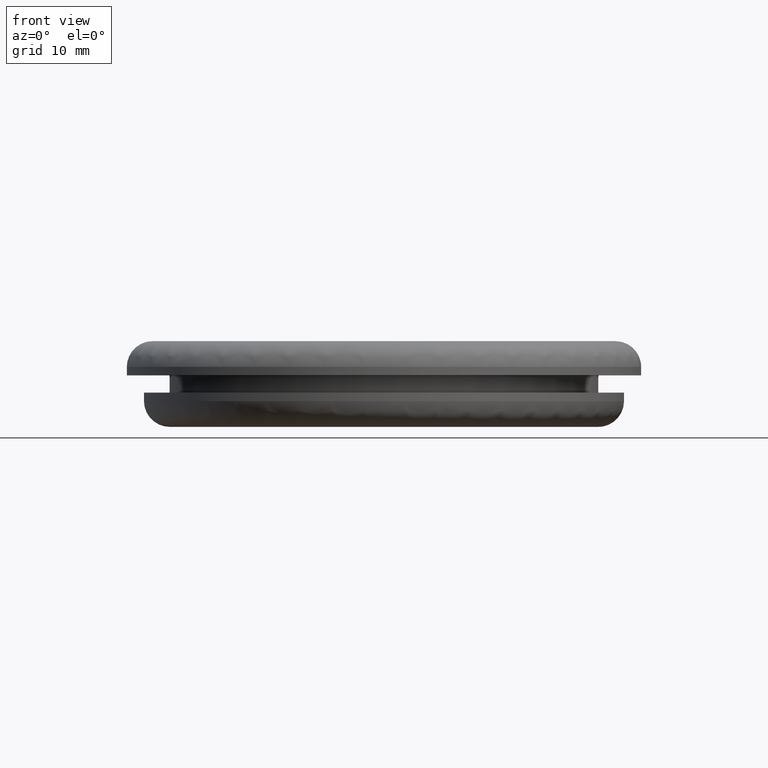
[diagram: clean part render]
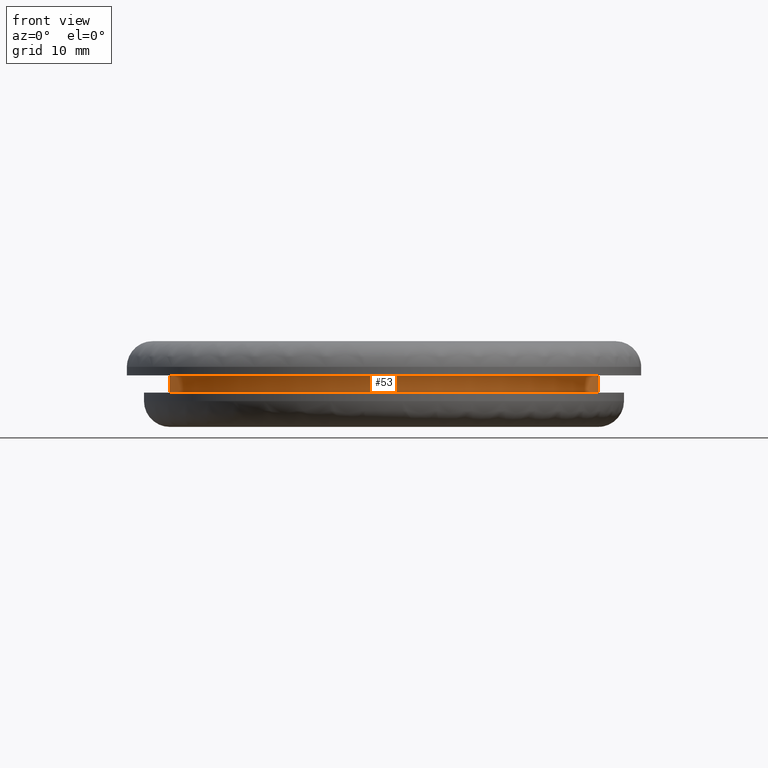
[diagram: same view with one face highlighted and labeled with its STEP entity id]
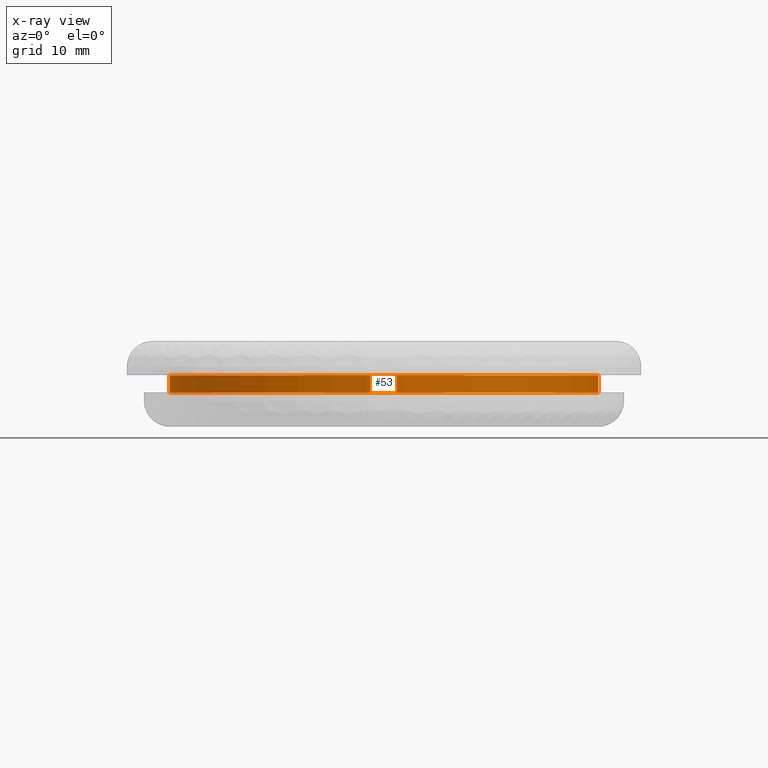
[diagram: x-ray of the same camera — body ghosted, the highlighted face saturated]
A machine part, front view. The second image highlights one B-rep face of the part: STEP entity #53.
The next image is the same camera in x-ray: the body ghosted, the highlighted face saturated — about 0% of this face is hidden behind the body in this view.
In plain terms, the highlighted cylindrical surface (partial cylindrical patch) has radius 25 mm, axis along (0, -0, 1).
Its self-contained STEP definition (entity closure, byte-faithful):
#53=ADVANCED_FACE('',(#195),#194,.T.);
#194=CYLINDRICAL_SURFACE('',#378,2.50000000000E+01);
#195=FACE_OUTER_BOUND('',#379,.T.);
#375=CARTESIAN_POINT('',(-1.19371179608E-12,0.00000000000E+00,0.00000000000E+00));
#376=DIRECTION('',(0.00000000000E+00,-0.00000000000E+00,1.00000000000E+00));
#377=DIRECTION('',(1.00000000000E+00,-0.00000000000E+00,-0.00000000000E+00));
#378=AXIS2_PLACEMENT_3D('',#375,#376,#377);
#379=EDGE_LOOP('',(#500,#501,#502,#503));
#500=ORIENTED_EDGE('',*,*,#543,.F.);
#501=ORIENTED_EDGE('',*,*,#556,.T.);
#502=ORIENTED_EDGE('',*,*,#538,.T.);
#503=ORIENTED_EDGE('',*,*,#557,.F.);
#538=EDGE_CURVE('',#636,#637,#638,.T.);
#543=EDGE_CURVE('',#665,#664,#672,.T.);
#556=EDGE_CURVE('',#665,#636,#756,.T.);
#557=EDGE_CURVE('',#664,#637,#762,.T.);
#636=VERTEX_POINT('',#868);
#637=VERTEX_POINT('',#869);
#638=CIRCLE('',#873,2.50000000000E+01);
#664=VERTEX_POINT('',#888);
#665=VERTEX_POINT('',#889);
#672=CIRCLE('',#897,2.50000000000E+01);
#756=(BOUNDED_CURVE() B_SPLINE_CURVE(1,(#944,#945),.UNSPECIFIED.,.F.,.F.) B_SPLINE_CURVE_WITH_KNOTS((2,2),(8.33333134656E-02,9.16666653270E-01),.UNSPECIFIED.) CURVE() GEOMETRIC_REPRESENTATION_ITEM() RATIONAL_B_SPLINE_CURVE((1.00000000000E+00,1.00000000000E+00)) REPRESENTATION_ITEM('') );
#762=(BOUNDED_CURVE() B_SPLINE_CURVE(1,(#946,#947),.UNSPECIFIED.,.F.,.F.) B_SPLINE_CURVE_WITH_KNOTS((2,2),(8.33333333333E-02,9.16666666667E-01),.UNSPECIFIED.) CURVE() GEOMETRIC_REPRESENTATION_ITEM() RATIONAL_B_SPLINE_CURVE((7.50000000000E-01,7.50000000000E-01)) REPRESENTATION_ITEM('') );
#868=CARTESIAN_POINT('',(2.50000000000E+01,-1.18423789293E-15,-4.00000000001E+00));
#869=CARTESIAN_POINT('',(-2.50000000000E+01,0.00000000000E+00,-4.00000000001E+00));
#870=CARTESIAN_POINT('',(-1.19371179608E-12,0.00000000000E+00,-4.00000000001E+00));
#871=DIRECTION('',(-0.00000000000E+00,0.00000000000E+00,-1.00000000000E+00));
#872=DIRECTION('',(-1.00000000000E+00,-1.22460635382E-16,0.00000000000E+00));
#873=AXIS2_PLACEMENT_3D('',#870,#871,#872);
#888=CARTESIAN_POINT('',(-2.50000000000E+01,0.00000000000E+00,-6.00000000001E+00));
#889=CARTESIAN_POINT('',(2.50000000000E+01,-1.18423789293E-15,-6.00000000001E+00));
#894=CARTESIAN_POINT('',(-1.19371179608E-12,0.00000000000E+00,-6.00000000001E+00));
#895=DIRECTION('',(-0.00000000000E+00,0.00000000000E+00,-1.00000000000E+00));
#896=DIRECTION('',(-1.00000000000E+00,-1.22460635382E-16,0.00000000000E+00));
#897=AXIS2_PLACEMENT_3D('',#894,#895,#896);
#944=CARTESIAN_POINT('',(2.50000000000E+01,0.00000000000E+00,-6.00000004769E+00));
#945=CARTESIAN_POINT('',(2.50000000000E+01,0.00000000000E+00,-4.00000003216E+00));
#946=CARTESIAN_POINT('',(-2.50000000000E+01,-1.18423789293E-15,-6.00000000001E+00));
#947=CARTESIAN_POINT('',(-2.50000000000E+01,-1.18423789293E-15,-4.00000000001E+00));